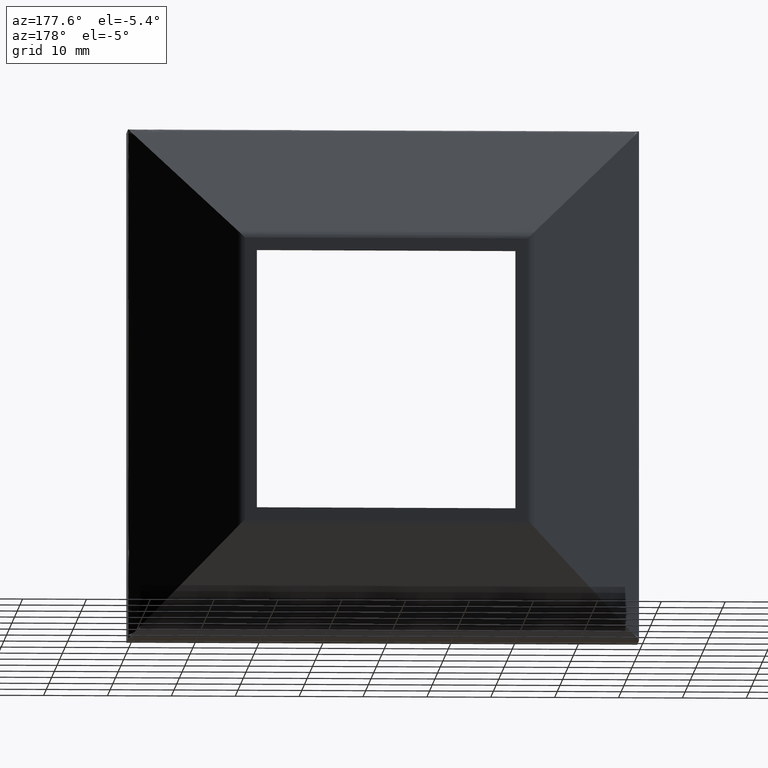
[diagram: clean part render]
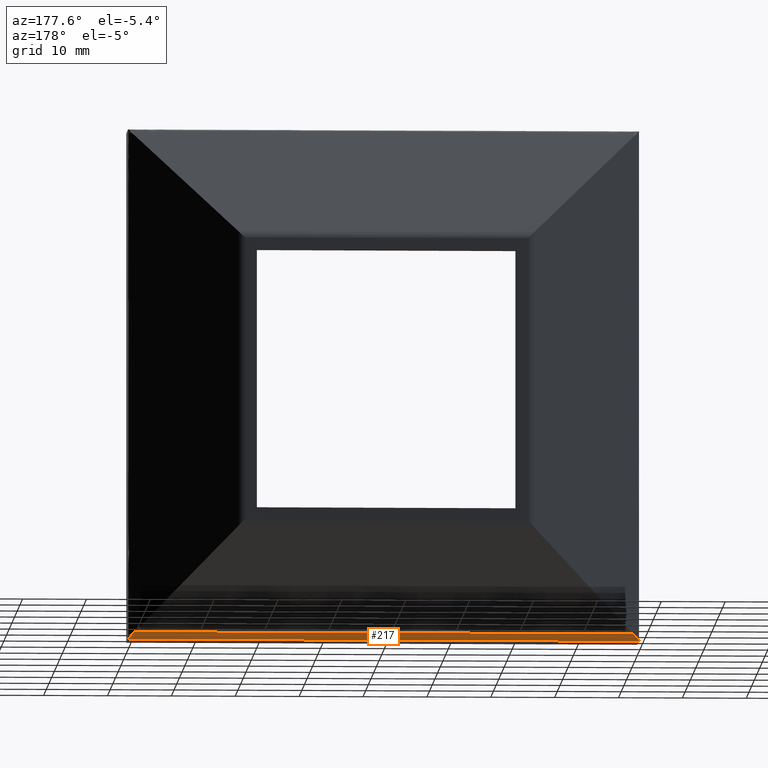
[diagram: same view with one face highlighted and labeled with its STEP entity id]
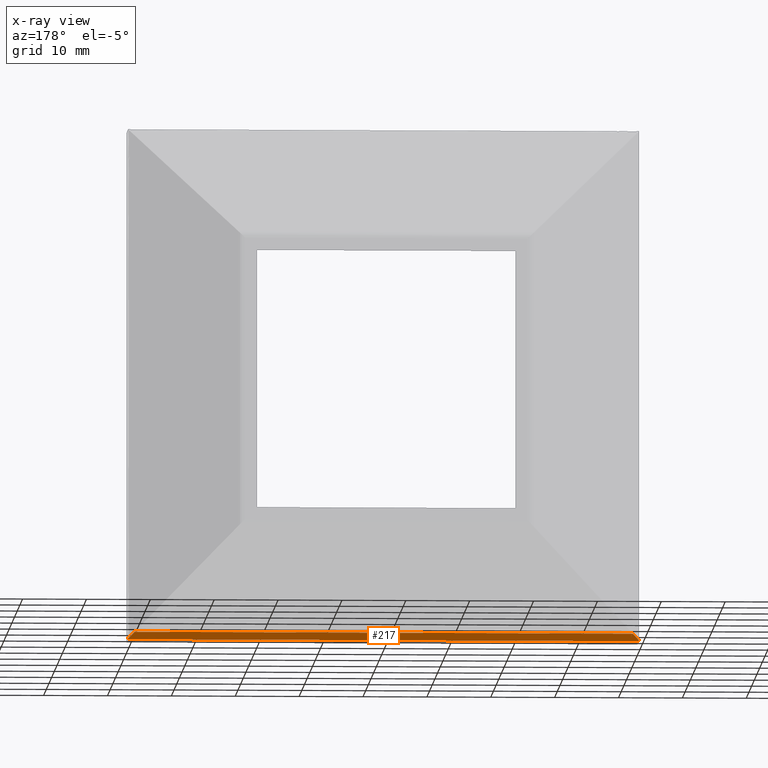
[diagram: x-ray of the same camera — body ghosted, the highlighted face saturated]
A machine part, auxiliary view. The second image highlights one B-rep face of the part: STEP entity #217.
The next image is the same camera in x-ray: the body ghosted, the highlighted face saturated — about 0% of this face is hidden behind the body in this view.
In plain terms, the highlighted face is a freeform B-spline surface patch.
Its self-contained STEP definition (entity closure, byte-faithful):
#8 = CARTESIAN_POINT ( 'NONE',  ( 12.99999999999997700, 7.577350269189627100, -39.00000000000000000 ) ) ;
#13 = CARTESIAN_POINT ( 'NONE',  ( 13.33333333333332100, 5.845299461620747600, -40.00000000000000700 ) ) ;
#21 = CARTESIAN_POINT ( 'NONE',  ( -13.33333333333335000, 5.845299461620747600, -40.00000000000000700 ) ) ;
#23 = EDGE_CURVE ( 'NONE', #877, #1073, #568, .T. ) ;
#24 = CARTESIAN_POINT ( 'NONE',  ( 43.99999999999999300, 7.000000000000000900, -40.00000000000000000 ) ) ;
#27 = CARTESIAN_POINT ( 'NONE',  ( 39.57048900840656100, 7.247088283422314700, -39.57077457730811400 ) ) ;
#32 = CARTESIAN_POINT ( 'NONE',  ( -44.00000000000002100, 7.000000000000000900, -40.00000000000000000 ) ) ;
#40 = CARTESIAN_POINT ( 'NONE',  ( 39.99822774174361200, 6.844323200559007800, -39.99555916357958600 ) ) ;
#41 = CARTESIAN_POINT ( 'NONE',  ( -39.99907282767760100, 6.789281797305895900, -39.99705176023871200 ) ) ;
#44 = CARTESIAN_POINT ( 'NONE',  ( -39.99994481117128900, 6.441910694859669400, -39.99957808418192000 ) ) ;
#54 = CARTESIAN_POINT ( 'NONE',  ( -39.53479281396945300, 7.267820769640275500, -39.53510205691652900 ) ) ;
#60 = CARTESIAN_POINT ( 'NONE',  ( -39.69679142896739400, 7.173106419521467100, -39.69750829659865600 ) ) ;
#65 = CARTESIAN_POINT ( 'NONE',  ( -39.74018570978459100, 7.147005324322915200, -39.74188148400455800 ) ) ;
#76 = CARTESIAN_POINT ( 'NONE',  ( 39.99999999999997900, 5.990232302823548200, -39.99999999999999300 ) ) ;
#107 = CARTESIAN_POINT ( 'NONE',  ( 14.66666666666665500, 7.000000000000000900, -40.00000000000000000 ) ) ;
#111 = CARTESIAN_POINT ( 'NONE',  ( 44.00000000000000000, 7.577350269189627100, -39.00000000000000000 ) ) ;
#113 = ORIENTED_EDGE ( 'NONE', *, *, #23, .F. ) ;
#115 = CARTESIAN_POINT ( 'NONE',  ( -44.00000000000002100, 7.577350269189627100, -39.00000000000000000 ) ) ;
#116 = CARTESIAN_POINT ( 'NONE',  ( -39.31726589957973100, 7.393494899761869900, -39.31822176225127700 ) ) ;
#124 = CARTESIAN_POINT ( 'NONE',  ( 39.69857256299692200, 7.172541223197686800, -39.69857256299694400 ) ) ;
#128 = CARTESIAN_POINT ( 'NONE',  ( 39.99906956441542100, 6.789521749134324000, -39.99704701742126600 ) ) ;
#135 = CARTESIAN_POINT ( 'NONE',  ( 39.95463018863730300, 7.007990852186011900, -39.95565794252263500 ) ) ;
#147 = CARTESIAN_POINT ( 'NONE',  ( -39.99717433196991600, 6.881529542187859500, -39.99398565698484000 ) ) ;
#150 = CARTESIAN_POINT ( 'NONE',  ( -39.99417205968791200, 6.922185189303515800, -39.99043730050356500 ) ) ;
#155 = CARTESIAN_POINT ( 'NONE',  ( -39.70797076858129100, 7.166373483001998500, -39.70897439636272700 ) ) ;
#187 = CARTESIAN_POINT ( 'NONE',  ( -40.00000000000001400, 5.845299461620747600, -40.00000000000000700 ) ) ;
#197 = CARTESIAN_POINT ( 'NONE',  ( 39.40883666468718600, 7.341005802916926700, -39.40889043577652000 ) ) ;
#201 = CARTESIAN_POINT ( 'NONE',  ( -39.09129680753033400, 7.524640032785846700, -39.09129680753033400 ) ) ;
#205 = CARTESIAN_POINT ( 'NONE',  ( 39.62318270611066100, 7.216534618919302700, -39.62324056038167400 ) ) ;
#208 = CARTESIAN_POINT ( 'NONE',  ( 39.79530858592203700, 7.114274256723237300, -39.79694441402970300 ) ) ;
#209 = CARTESIAN_POINT ( 'NONE',  ( -39.43825302756893300, 7.323995108397725500, -39.43825496719982500 ) ) ;
#217 = ADVANCED_FACE ( 'NONE', ( #963 ), #288, .T. ) ;
#225 = CARTESIAN_POINT ( 'NONE',  ( -39.99293582992473300, 6.931421506682053900, -39.98914551409498600 ) ) ;
#233 = CARTESIAN_POINT ( 'NONE',  ( -39.67936088072739400, 7.183542113257034100, -39.67970204969115900 ) ) ;
#255 = EDGE_CURVE ( 'NONE', #877, #484, #682, .T. ) ;
#279 = CARTESIAN_POINT ( 'NONE',  ( -39.00000000000000700, 7.577350269189627100, -39.00000000000000000 ) ) ;
#282 = CARTESIAN_POINT ( 'NONE',  ( 39.31467125644479700, 7.395095323832563800, -39.31543822633413800 ) ) ;
#285 = CARTESIAN_POINT ( 'NONE',  ( 39.51646558689924400, 7.278466438441817000, -39.51678468493353300 ) ) ;
#288 =( BOUNDED_SURFACE ( )  B_SPLINE_SURFACE ( 2, 3, ( 
 ( #361, #612, #616, #376 ),
 ( #32, #1057, #107, #24 ),
 ( #115, #540, #707, #111 ) ),
 .UNSPECIFIED., .F., .F., .T. ) 
 B_SPLINE_SURFACE_WITH_KNOTS ( ( 3, 3 ),
 ( 4, 4 ),
 ( 0.0000000000000000000, 1.000000000000000000 ),
 ( -0.08400000000000000500, 0.004000000000000000100 ),
 .UNSPECIFIED. ) 
 GEOMETRIC_REPRESENTATION_ITEM ( )  RATIONAL_B_SPLINE_SURFACE ( (
 ( 1.000000000000000000, 1.000000000000000000, 1.000000000000000000, 1.000000000000000000),
 ( 17.32050807568875700, 17.32050807568875700, 17.32050807568875700, 17.32050807568875700),
 ( 1.000000000000000000, 1.000000000000000000, 1.000000000000000000, 1.000000000000000000) ) ) 
 REPRESENTATION_ITEM ( '' )  SURFACE ( )  );
#290 = CARTESIAN_POINT ( 'NONE',  ( 39.99991138708716000, 6.501318209434916900, -39.99940067373629700 ) ) ;
#291 = CARTESIAN_POINT ( 'NONE',  ( -39.99982339574812300, 6.595905492363033100, -39.99902567492188200 ) ) ;
#295 = CARTESIAN_POINT ( 'NONE',  ( 39.97731509431863400, 6.982355415199974000, -39.97517742524686200 ) ) ;
#299 = CARTESIAN_POINT ( 'NONE',  ( 39.90642476406445400, 7.044512754529322700, -39.90894283487893500 ) ) ;
#313 = CARTESIAN_POINT ( 'NONE',  ( -39.89121178084047200, 7.055138358221078000, -39.89237256713804700 ) ) ;
#317 = CARTESIAN_POINT ( 'NONE',  ( -39.91522995909649300, 7.037979085504532300, -39.91772076638231700 ) ) ;
#361 = CARTESIAN_POINT ( 'NONE',  ( -44.00000000000002100, 5.845299461620747600, -40.00000000000000700 ) ) ;
#365 = CARTESIAN_POINT ( 'NONE',  ( -39.17300934895234100, 7.476775100890749900, -39.17415851164068400 ) ) ;
#372 = CARTESIAN_POINT ( 'NONE',  ( 39.64152033545718700, 7.205863582545797300, -39.64152615410341700 ) ) ;
#376 = CARTESIAN_POINT ( 'NONE',  ( 44.00000000000000000, 5.845299461620747600, -40.00000000000000700 ) ) ;
#383 = CARTESIAN_POINT ( 'NONE',  ( 39.99963447173461600, 6.686804960064408800, -39.99840422463028500 ) ) ;
#397 = CARTESIAN_POINT ( 'NONE',  ( -39.90604653799860600, 7.044650648441927600, -39.90812620416986100 ) ) ;
#402 = CARTESIAN_POINT ( 'NONE',  ( -39.58884712333782800, 7.236424387717495000, -39.58912265231880000 ) ) ;
#408 = CARTESIAN_POINT ( 'NONE',  ( 38.99999999999997200, 7.577350269189631500, -38.99999999999999300 ) ) ;
#441 = CARTESIAN_POINT ( 'NONE',  ( -39.00000000000000700, 7.577350269189627100, -39.00000000000000000 ) ) ;
#446 = CARTESIAN_POINT ( 'NONE',  ( 39.81148846067687000, 7.104799565412065500, -39.81270341167211100 ) ) ;
#451 = CARTESIAN_POINT ( 'NONE',  ( 39.42081062329852900, 7.334093281667212400, -39.42082463572621300 ) ) ;
#456 = CARTESIAN_POINT ( 'NONE',  ( 39.42920454259712700, 7.329238156995729400, -39.42920558435225300 ) ) ;
#459 = CARTESIAN_POINT ( 'NONE',  ( 39.64549428500629300, 7.203546635178071300, -39.64549428500631500 ) ) ;
#465 = CARTESIAN_POINT ( 'NONE',  ( 39.99853788693849300, 6.829461214447462700, -39.99606809670005000 ) ) ;
#466 = CARTESIAN_POINT ( 'NONE',  ( 39.84327415620612100, 7.085993576816514800, -39.84356973980664700 ) ) ;
#472 = CARTESIAN_POINT ( 'NONE',  ( -39.99929358299248600, 6.764688617817361300, -39.99752138941734400 ) ) ;
#473 = CARTESIAN_POINT ( 'NONE',  ( -40.00000000000001400, 5.845299461620747600, -40.00000000000000700 ) ) ;
#476 = EDGE_LOOP ( 'NONE', ( #580, #651, #1082, #113 ) ) ;
#478 = CARTESIAN_POINT ( 'NONE',  ( 39.99716438678981900, 6.881696860878980400, -39.99397599016424500 ) ) ;
#479 = CARTESIAN_POINT ( 'NONE',  ( -39.99997792446854600, 6.297690635786224800, -39.99979741745861600 ) ) ;
#484 = VERTEX_POINT ( 'NONE', #932 ) ;
#486 = CARTESIAN_POINT ( 'NONE',  ( -39.99999999999999300, 5.990052684447953800, -40.00000000000000000 ) ) ;
#490 = CARTESIAN_POINT ( 'NONE',  ( -39.87814306620118300, 7.064099632313633100, -39.87852039271021500 ) ) ;
#494 = CARTESIAN_POINT ( 'NONE',  ( -39.99629131071050400, 6.897006832797862000, -39.99285721495790100 ) ) ;
#496 = CARTESIAN_POINT ( 'NONE',  ( -39.48577000733808300, 7.296363978787934600, -39.48591951335619400 ) ) ;
#527 = CARTESIAN_POINT ( 'NONE',  ( 38.99999999999997200, 7.577350269189631500, -38.99999999999999300 ) ) ;
#528 = CARTESIAN_POINT ( 'NONE',  ( 38.99999999999997200, 7.577350269189631500, -38.99999999999999300 ) ) ;
#530 = CARTESIAN_POINT ( 'NONE',  ( -39.37980990878514100, 7.357856802725819100, -39.37980990878511300 ) ) ;
#537 = CARTESIAN_POINT ( 'NONE',  ( 39.38410355360566200, 7.355245143125858800, -39.38430061226787900 ) ) ;
#540 = CARTESIAN_POINT ( 'NONE',  ( -14.66666666666668200, 7.577350269189627100, -39.00000000000000000 ) ) ;
#545 = CARTESIAN_POINT ( 'NONE',  ( 39.99976739110386600, 6.630352811135273900, -39.99882256608203300 ) ) ;
#549 = CARTESIAN_POINT ( 'NONE',  ( 39.86247275930687600, 7.074251190670536500, -39.86247275930689000 ) ) ;
#550 = CARTESIAN_POINT ( 'NONE',  ( -39.99976820691942000, 6.630023448835517600, -39.99882458639678600 ) ) ;
#553 = CARTESIAN_POINT ( 'NONE',  ( 39.99955693543589100, 6.708805419948196100, -39.99818703393850000 ) ) ;
#562 = CARTESIAN_POINT ( 'NONE',  ( -39.81374349503531100, 7.103353918063900700, -39.81526456975260000 ) ) ;
#565 = CARTESIAN_POINT ( 'NONE',  ( -39.86709093614484100, 7.071352997785659500, -39.86709093614472700 ) ) ;
#568 = B_SPLINE_CURVE_WITH_KNOTS ( 'NONE', 3,
 ( #528, #8, #613, #441 ),
 .UNSPECIFIED., .F., .F.,
 ( 4, 4 ),
 ( 0.0000000000000000000, 1.000000000000000000 ),
 .UNSPECIFIED. ) ;
#569 = EDGE_CURVE ( 'NONE', #1054, #1073, #714, .T. ) ;
#571 = CARTESIAN_POINT ( 'NONE',  ( -39.84258392183048200, 7.086735792517338900, -39.84258392183036100 ) ) ;
#577 = CARTESIAN_POINT ( 'NONE',  ( -39.98587165984941500, 6.970417690484882900, -39.98221583463883600 ) ) ;
#580 = ORIENTED_EDGE ( 'NONE', *, *, #255, .T. ) ;
#612 = CARTESIAN_POINT ( 'NONE',  ( -14.66666666666668200, 5.845299461620747600, -40.00000000000000700 ) ) ;
#613 = CARTESIAN_POINT ( 'NONE',  ( -13.00000000000001800, 7.577350269189627100, -39.00000000000000000 ) ) ;
#614 = CARTESIAN_POINT ( 'NONE',  ( -39.43442464385400800, 7.326214419112499600, -39.43442464385399400 ) ) ;
#616 = CARTESIAN_POINT ( 'NONE',  ( 14.66666666666664300, 5.845299461620747600, -40.00000000000000700 ) ) ;
#619 = CARTESIAN_POINT ( 'NONE',  ( 39.42585819193283200, 7.331174434499917700, -39.42586325761530500 ) ) ;
#621 = CARTESIAN_POINT ( 'NONE',  ( 39.58750418994237900, 7.237226424501722400, -39.58772518521775700 ) ) ;
#626 = CARTESIAN_POINT ( 'NONE',  ( 39.17288994466378700, 7.476845966874892100, -39.17403583188110600 ) ) ;
#628 = EDGE_CURVE ( 'NONE', #1054, #484, #1010, .T. ) ;
#632 = CARTESIAN_POINT ( 'NONE',  ( -39.99999724055859200, 6.085415727050412100, -39.99996349797643800 ) ) ;
#637 = CARTESIAN_POINT ( 'NONE',  ( 39.99994461692948300, 6.442287349026054600, -39.99957727566572900 ) ) ;
#651 = ORIENTED_EDGE ( 'NONE', *, *, #628, .F. ) ;
#652 = CARTESIAN_POINT ( 'NONE',  ( -39.65074195864298200, 7.200481201103722900, -39.65074195864296100 ) ) ;
#658 = CARTESIAN_POINT ( 'NONE',  ( -39.51578032364059100, 7.278886498017270100, -39.51604438069869500 ) ) ;
#669 = CARTESIAN_POINT ( 'NONE',  ( 39.99999723084646100, 6.085659425924170300, -39.99996341238345800 ) ) ;
#682 = B_SPLINE_CURVE_WITH_KNOTS ( 'NONE', 3,
 ( #527, #874, #626, #800, #282, #882, #537, #197, #451, #619, #456, #797, #970, #285, #27, #621, #717, #205, #1048, #372, #973, #459, #124, #722, #208, #446, #1070, #466, #729, #814, #549, #896, #299, #808, #135, #295, #1074, #987, #977, #902, #478, #40, #465, #128, #989, #553, #383, #545, #724, #290, #637, #734, #1068, #669, #76, #863 ),
 .UNSPECIFIED., .F., .F.,
 ( 4, 2, 2, 1, 1, 1, 2, 2, 2, 2, 1, 1, 2, 2, 2, 2, 1, 2, 2, 2, 2, 2, 2, 2, 2, 2, 2, 2, 2, 2, 4 ),
 ( 0.0000000000000000000, 0.1249999999997755400, 0.1874999999996631300, 0.2187499999996009300, 0.2343749999995668200, 0.2421874999995531100, 0.2460937499995499700, 0.2499999999995468100, 0.3124999999995561900, 0.3437499999995583000, 0.3593749999995566900, 0.3671874999995527500, 0.3710937499995508000, 0.3749999999995488100, 0.4374999999995878300, 0.4687499999996045400, 0.4843749999996130900, 0.4921874999996247400, 0.4999999999996362900, 0.6249999999997270000, 0.7499999999998177000, 0.8749999999999085200, 0.9062499999999308300, 0.9374999999999532600, 0.9531249999999649200, 0.9687499999999765700, 0.9765624999999824600, 0.9843749999999883400, 0.9921874999999941200, 0.9960937499999971100, 1.000000000000000000 ),
 .UNSPECIFIED. ) ;
#707 = CARTESIAN_POINT ( 'NONE',  ( 14.66666666666664300, 7.577350269189627100, -39.00000000000000000 ) ) ;
#714 = B_SPLINE_CURVE_WITH_KNOTS ( 'NONE', 3,
 ( #1072, #486, #632, #738, #479, #44, #725, #291, #550, #984, #893, #472, #41, #897, #988, #147, #494, #150, #225, #577, #830, #1096, #825, #317, #397, #313, #918, #490, #999, #920, #1090, #565, #571, #562, #915, #65, #155, #60, #233, #751, #747, #834, #652, #1007, #402, #54, #658, #496, #1101, #791, #884, #209, #614, #530, #116, #365, #201, #279 ),
 .UNSPECIFIED., .F., .F.,
 ( 4, 2, 2, 2, 2, 2, 2, 2, 2, 2, 2, 2, 2, 2, 1, 2, 2, 2, 2, 2, 1, 2, 2, 2, 2, 1, 1, 2, 2, 2, 4 ),
 ( 0.0000000000000000000, 0.003906250000000926300, 0.007812500000001852700, 0.01562500000000377500, 0.02343750000000569700, 0.03125000000000761900, 0.04687500000001187900, 0.06250000000001614000, 0.09375000000002536900, 0.1250000000000345800, 0.2500000000000794900, 0.3750000000001244000, 0.4375000000001468300, 0.4687500000001753000, 0.4843750000001808600, 0.4921875000001764100, 0.5000000000001719700, 0.5625000000001547700, 0.5937500000001509900, 0.6093750000001512100, 0.6171875000001551000, 0.6210937500001590900, 0.6250000000001629800, 0.6875000000001381100, 0.7187500000001306700, 0.7343750000001293400, 0.7421875000001285600, 0.7460937500001240100, 0.7500000000001193500, 0.8750000000000597300, 1.000000000000000000 ),
 .UNSPECIFIED. ) ;
#717 = CARTESIAN_POINT ( 'NONE',  ( 39.61153802379622800, 7.223289697585903100, -39.61165123492548900 ) ) ;
#722 = CARTESIAN_POINT ( 'NONE',  ( 39.74149007860722800, 7.146122507496154500, -39.74350006670743300 ) ) ;
#724 = CARTESIAN_POINT ( 'NONE',  ( 39.99982277417435500, 6.596248776930441000, -39.99902396824696600 ) ) ;
#725 = CARTESIAN_POINT ( 'NONE',  ( -39.99991169787408300, 6.500953039483729200, -39.99940177578508100 ) ) ;
#729 = CARTESIAN_POINT ( 'NONE',  ( 39.85243969055640200, 7.080434644442784800, -39.85255007633598000 ) ) ;
#734 = CARTESIAN_POINT ( 'NONE',  ( 39.99997784677178500, 6.298039662259155200, -39.99979700383959600 ) ) ;
#738 = CARTESIAN_POINT ( 'NONE',  ( -39.99998620279284700, 6.240175412829429100, -39.99986288702235300 ) ) ;
#747 = CARTESIAN_POINT ( 'NONE',  ( -39.66135148602060000, 7.194243356109120100, -39.66141460408779600 ) ) ;
#751 = CARTESIAN_POINT ( 'NONE',  ( -39.67048022190259400, 7.188843043981591100, -39.67064886277008600 ) ) ;
#791 = CARTESIAN_POINT ( 'NONE',  ( -39.45179832513473200, 7.316133087035196600, -39.45182211658809000 ) ) ;
#797 = CARTESIAN_POINT ( 'NONE',  ( 39.42977556191083700, 7.328907971101177300, -39.42977556190545800 ) ) ;
#800 = CARTESIAN_POINT ( 'NONE',  ( 39.28102065731970800, 7.414421264792849800, -39.28202208530044700 ) ) ;
#808 = CARTESIAN_POINT ( 'NONE',  ( 39.94045212258645000, 7.019107698105661300, -39.94303102127706500 ) ) ;
#814 = CARTESIAN_POINT ( 'NONE',  ( 39.85833009332949900, 7.076826527202287700, -39.85835442357305400 ) ) ;
#825 = CARTESIAN_POINT ( 'NONE',  ( -39.94066097136752800, 7.018978173176083000, -39.94318210370692400 ) ) ;
#830 = CARTESIAN_POINT ( 'NONE',  ( -39.97739465575907000, 6.982260700083126700, -39.97522587911805700 ) ) ;
#834 = CARTESIAN_POINT ( 'NONE',  ( -39.65521053386433400, 7.197862005649443300, -39.65522453728812000 ) ) ;
#863 = CARTESIAN_POINT ( 'NONE',  ( 39.99999999999998600, 5.845299461620747600, -40.00000000000000700 ) ) ;
#874 = CARTESIAN_POINT ( 'NONE',  ( 39.09123091585232100, 7.524678075363860700, -39.09123091585233600 ) ) ;
#877 = VERTEX_POINT ( 'NONE', #408 ) ;
#882 = CARTESIAN_POINT ( 'NONE',  ( 39.36155769749207400, 7.368183850759422200, -39.36194645266778700 ) ) ;
#884 = CARTESIAN_POINT ( 'NONE',  ( -39.44368979135534700, 7.320840701437828300, -39.44369864379348200 ) ) ;
#893 = CARTESIAN_POINT ( 'NONE',  ( -39.99955848937031500, 6.708514073502356300, -39.99819003140236600 ) ) ;
#896 = CARTESIAN_POINT ( 'NONE',  ( 39.88657547159329700, 7.059130726600740100, -39.88657547159331100 ) ) ;
#897 = CARTESIAN_POINT ( 'NONE',  ( -39.99854301492196400, 6.829251178322443200, -39.99607437038513800 ) ) ;
#902 = CARTESIAN_POINT ( 'NONE',  ( 39.99627825766165000, 6.897160656430337200, -39.99284562183922300 ) ) ;
#908 = CARTESIAN_POINT ( 'NONE',  ( -39.00000000000000700, 7.577350269189627100, -39.00000000000000000 ) ) ;
#915 = CARTESIAN_POINT ( 'NONE',  ( -39.75989823373563300, 7.135220628945357500, -39.76179698433669100 ) ) ;
#918 = CARTESIAN_POINT ( 'NONE',  ( -39.88609025753590500, 7.058708599044499500, -39.88690254978465100 ) ) ;
#920 = CARTESIAN_POINT ( 'NONE',  ( -39.86996408178589500, 7.069495101890448800, -39.87003223811664300 ) ) ;
#932 = CARTESIAN_POINT ( 'NONE',  ( 39.99999999999998600, 5.845299461620747600, -40.00000000000000700 ) ) ;
#957 = CARTESIAN_POINT ( 'NONE',  ( 39.99999999999998600, 5.845299461620747600, -40.00000000000000700 ) ) ;
#963 = FACE_OUTER_BOUND ( 'NONE', #476, .T. ) ;
#970 = CARTESIAN_POINT ( 'NONE',  ( 39.47647947002796800, 7.301849039727323500, -39.47647947002258200 ) ) ;
#973 = CARTESIAN_POINT ( 'NONE',  ( 39.64509170071826800, 7.203780878233290600, -39.64509293597699000 ) ) ;
#977 = CARTESIAN_POINT ( 'NONE',  ( 39.99415154775402900, 6.922317819495424000, -39.99042132576796900 ) ) ;
#984 = CARTESIAN_POINT ( 'NONE',  ( -39.99963575373050900, 6.686501364513142100, -39.99840689019329400 ) ) ;
#987 = CARTESIAN_POINT ( 'NONE',  ( 39.99291096697456300, 6.931546638543006000, -39.98912708443197100 ) ) ;
#988 = CARTESIAN_POINT ( 'NONE',  ( -39.99823395748119700, 6.844125193044593700, -39.99556624713744000 ) ) ;
#989 = CARTESIAN_POINT ( 'NONE',  ( 39.99929109669744100, 6.764946561274718400, -39.99751736766462800 ) ) ;
#999 = CARTESIAN_POINT ( 'NONE',  ( -39.87410324393935900, 7.066803129498878500, -39.87428655997875600 ) ) ;
#1007 = CARTESIAN_POINT ( 'NONE',  ( -39.62090578075898900, 7.217910342385589000, -39.62090578075894600 ) ) ;
#1010 = B_SPLINE_CURVE_WITH_KNOTS ( 'NONE', 3,
 ( #187, #21, #13, #957 ),
 .UNSPECIFIED., .F., .F.,
 ( 4, 4 ),
 ( 0.0000000000000000000, 1.000000000000000000 ),
 .UNSPECIFIED. ) ;
#1048 = CARTESIAN_POINT ( 'NONE',  ( 39.63611675823899100, 7.209012354710433900, -39.63613262375770300 ) ) ;
#1054 = VERTEX_POINT ( 'NONE', #473 ) ;
#1057 = CARTESIAN_POINT ( 'NONE',  ( -14.66666666666669300, 7.000000000000000900, -40.00000000000000000 ) ) ;
#1068 = CARTESIAN_POINT ( 'NONE',  ( 39.99998615423236700, 6.240508034974386200, -39.99986259767118200 ) ) ;
#1070 = CARTESIAN_POINT ( 'NONE',  ( 39.83311883128391200, 7.092024464092737000, -39.83371574877211400 ) ) ;
#1072 = CARTESIAN_POINT ( 'NONE',  ( -40.00000000000001400, 5.845299461620747600, -40.00000000000000700 ) ) ;
#1073 = VERTEX_POINT ( 'NONE', #908 ) ;
#1074 = CARTESIAN_POINT ( 'NONE',  ( 39.98582193394916800, 6.970513496206456800, -39.98218343734280500 ) ) ;
#1082 = ORIENTED_EDGE ( 'NONE', *, *, #569, .T. ) ;
#1090 = CARTESIAN_POINT ( 'NONE',  ( -39.86718256481873400, 7.071283885942985800, -39.86719747493948800 ) ) ;
#1096 = CARTESIAN_POINT ( 'NONE',  ( -39.95478931151811300, 7.007880760832894600, -39.95576524513184300 ) ) ;
#1101 = CARTESIAN_POINT ( 'NONE',  ( -39.47039195398453900, 7.305321254264860000, -39.47047454946370200 ) ) ;